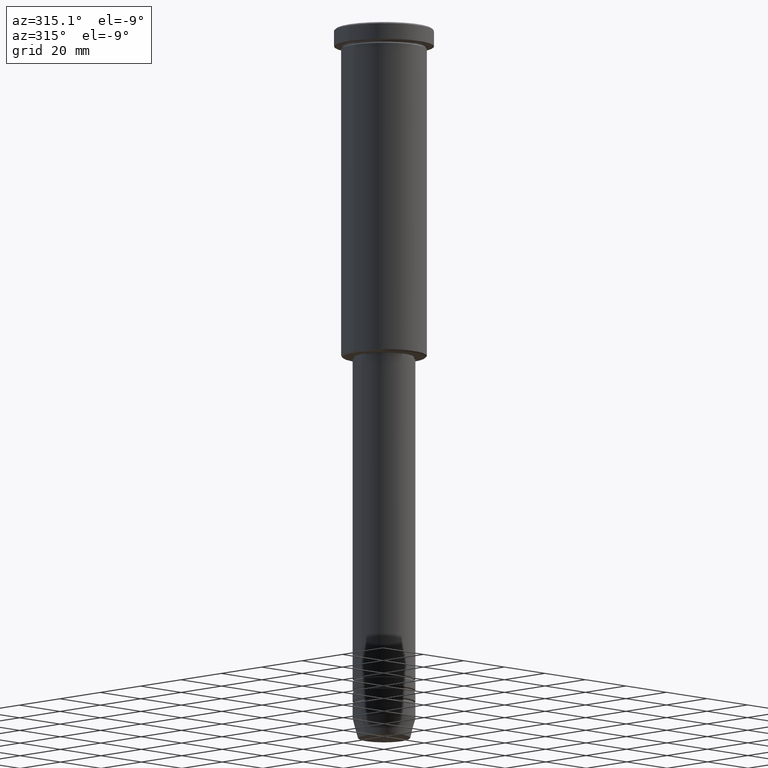
[diagram: clean part render]
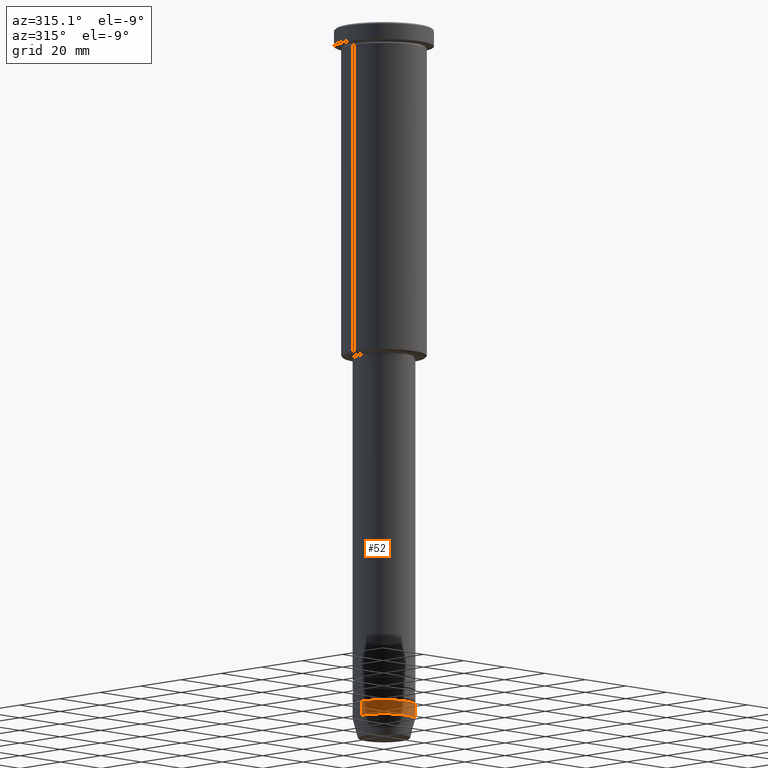
[diagram: same view with one face highlighted and labeled with its STEP entity id]
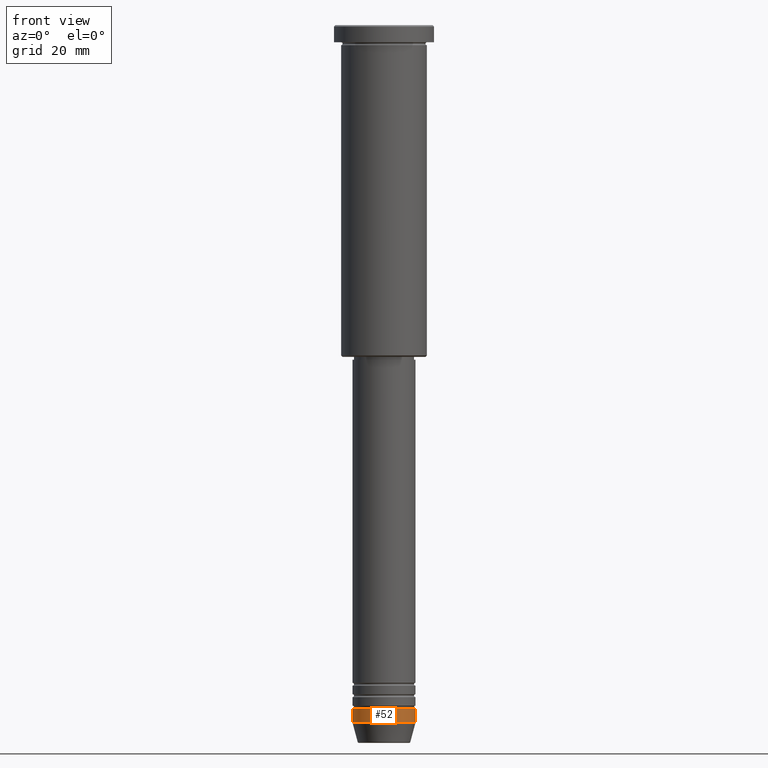
[diagram: same view with one face highlighted and labeled with its STEP entity id]
A machine part, auxiliary view. The second image highlights one B-rep face of the part: STEP entity #52.
A second angle (front view) of the same face is appended — the face is thin or edge-on in the first view.
In plain terms, the highlighted cylindrical surface (edge-blend (fillet) strip) has radius 11 mm, axis along (-0, -0, 1).
Its self-contained STEP definition (entity closure, byte-faithful):
#15 = ORIENTED_EDGE ( 'NONE', *, *, #536, .F. ) ;
#26 = CYLINDRICAL_SURFACE ( 'NONE', #96, 11.00000000000000000 ) ;
#35 = LINE ( 'NONE', #1058, #591 ) ;
#52 = ADVANCED_FACE ( 'NONE', ( #783 ), #26, .T. ) ;
#76 = CARTESIAN_POINT ( 'NONE',  ( 11.00000000000000000, 0.000000000000000000, 0.000000000000000000 ) ) ;
#96 = AXIS2_PLACEMENT_3D ( 'NONE', #1129, #131, #588 ) ;
#99 = CARTESIAN_POINT ( 'NONE',  ( 0.000000000000000000, 0.000000000000000000, -244.0000000000000000 ) ) ;
#131 = DIRECTION ( 'NONE',  ( -0.000000000000000000, -0.000000000000000000, 1.000000000000000000 ) ) ;
#194 = CIRCLE ( 'NONE', #739, 11.00000000000000000 ) ;
#200 = ORIENTED_EDGE ( 'NONE', *, *, #823, .T. ) ;
#266 = DIRECTION ( 'NONE',  ( -0.000000000000000000, -0.000000000000000000, 1.000000000000000000 ) ) ;
#276 = EDGE_LOOP ( 'NONE', ( #862, #546, #200, #15 ) ) ;
#294 = DIRECTION ( 'NONE',  ( 1.000000000000000000, 0.000000000000000000, 0.000000000000000000 ) ) ;
#321 = DIRECTION ( 'NONE',  ( -0.000000000000000000, -0.000000000000000000, 1.000000000000000000 ) ) ;
#334 = CARTESIAN_POINT ( 'NONE',  ( -11.00000000000000000, 1.347111479062088405E-15, -244.0000000000000000 ) ) ;
#364 = DIRECTION ( 'NONE',  ( 1.000000000000000000, 0.000000000000000000, 0.000000000000000000 ) ) ;
#442 = EDGE_CURVE ( 'NONE', #824, #1098, #35, .T. ) ;
#448 = DIRECTION ( 'NONE',  ( -0.000000000000000000, -0.000000000000000000, 1.000000000000000000 ) ) ;
#483 = DIRECTION ( 'NONE',  ( -0.000000000000000000, -0.000000000000000000, 1.000000000000000000 ) ) ;
#536 = EDGE_CURVE ( 'NONE', #1098, #955, #194, .T. ) ;
#546 = ORIENTED_EDGE ( 'NONE', *, *, #685, .T. ) ;
#588 = DIRECTION ( 'NONE',  ( 1.000000000000000000, 0.000000000000000000, 0.000000000000000000 ) ) ;
#591 = VECTOR ( 'NONE', #321, 1000.000000000000000 ) ;
#663 = VERTEX_POINT ( 'NONE', #754 ) ;
#673 = CIRCLE ( 'NONE', #988, 11.00000000000000000 ) ;
#685 = EDGE_CURVE ( 'NONE', #824, #663, #673, .T. ) ;
#730 = CARTESIAN_POINT ( 'NONE',  ( 0.000000000000000000, 0.000000000000000000, -239.0000000000000284 ) ) ;
#739 = AXIS2_PLACEMENT_3D ( 'NONE', #730, #266, #364 ) ;
#754 = CARTESIAN_POINT ( 'NONE',  ( 11.00000000000000000, 0.000000000000000000, -244.0000000000000000 ) ) ;
#783 = FACE_OUTER_BOUND ( 'NONE', #276, .T. ) ;
#792 = CARTESIAN_POINT ( 'NONE',  ( -11.00000000000000000, 1.347111479062088405E-15, -239.0000000000000284 ) ) ;
#823 = EDGE_CURVE ( 'NONE', #663, #955, #907, .T. ) ;
#824 = VERTEX_POINT ( 'NONE', #334 ) ;
#862 = ORIENTED_EDGE ( 'NONE', *, *, #442, .F. ) ;
#907 = LINE ( 'NONE', #76, #1178 ) ;
#955 = VERTEX_POINT ( 'NONE', #1144 ) ;
#988 = AXIS2_PLACEMENT_3D ( 'NONE', #99, #483, #294 ) ;
#1058 = CARTESIAN_POINT ( 'NONE',  ( -11.00000000000000000, 1.347111479062088405E-15, 0.000000000000000000 ) ) ;
#1098 = VERTEX_POINT ( 'NONE', #792 ) ;
#1129 = CARTESIAN_POINT ( 'NONE',  ( 0.000000000000000000, 0.000000000000000000, 0.000000000000000000 ) ) ;
#1144 = CARTESIAN_POINT ( 'NONE',  ( 11.00000000000000000, 0.000000000000000000, -239.0000000000000284 ) ) ;
#1178 = VECTOR ( 'NONE', #448, 1000.000000000000000 ) ;